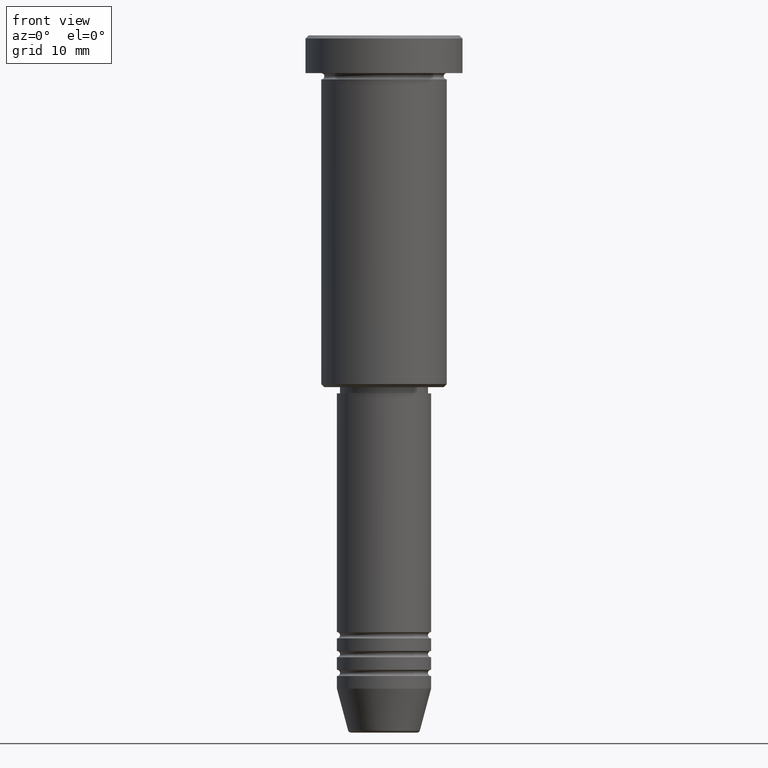
[diagram: clean part render]
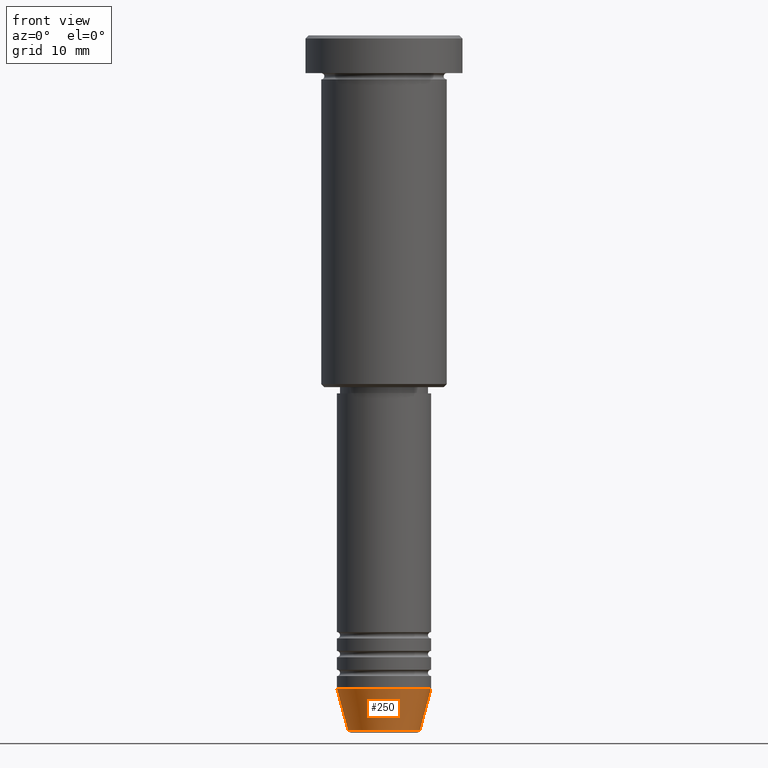
[diagram: same view with one face highlighted and labeled with its STEP entity id]
A machine part, front view. The second image highlights one B-rep face of the part: STEP entity #250.
In plain terms, the highlighted conical surface has half-angle 15 deg.
Its self-contained STEP definition (entity closure, byte-faithful):
#6 = DIRECTION ( 'NONE',  ( 1.000000000000000000, 0.000000000000000000, 0.000000000000000000 ) ) ;
#20 = DIRECTION ( 'NONE',  ( -0.2588190451025213501, 3.169619151431772337E-17, 0.9659258262890680902 ) ) ;
#67 = AXIS2_PLACEMENT_3D ( 'NONE', #142, #1026, #1138 ) ;
#95 = CIRCLE ( 'NONE', #67, 7.500000000000000000 ) ;
#138 = EDGE_CURVE ( 'NONE', #368, #181, #266, .T. ) ;
#142 = CARTESIAN_POINT ( 'NONE',  ( 0.000000000000000000, 0.000000000000000000, -104.0000000000000142 ) ) ;
#174 = CARTESIAN_POINT ( 'NONE',  ( 7.500000000000000000, 0.000000000000000000, -104.0000000000000142 ) ) ;
#181 = VERTEX_POINT ( 'NONE', #445 ) ;
#205 = VECTOR ( 'NONE', #536, 1000.000000000000000 ) ;
#250 = ADVANCED_FACE ( 'NONE', ( #1179 ), #768, .T. ) ;
#263 = DIRECTION ( 'NONE',  ( -0.000000000000000000, -0.000000000000000000, 1.000000000000000000 ) ) ;
#266 = LINE ( 'NONE', #174, #205 ) ;
#274 = DIRECTION ( 'NONE',  ( -0.000000000000000000, -0.000000000000000000, 1.000000000000000000 ) ) ;
#301 = CARTESIAN_POINT ( 'NONE',  ( -7.500000000000000000, 9.184850993605147944E-16, -104.0000000000000142 ) ) ;
#335 = EDGE_CURVE ( 'NONE', #679, #368, #1174, .T. ) ;
#368 = VERTEX_POINT ( 'NONE', #1092 ) ;
#386 = EDGE_CURVE ( 'NONE', #538, #181, #95, .T. ) ;
#445 = CARTESIAN_POINT ( 'NONE',  ( 7.500000000000000000, 0.000000000000000000, -104.0000000000000142 ) ) ;
#536 = DIRECTION ( 'NONE',  ( 0.2588190451025213501, 0.000000000000000000, 0.9659258262890680902 ) ) ;
#538 = VERTEX_POINT ( 'NONE', #301 ) ;
#556 = CARTESIAN_POINT ( 'NONE',  ( -5.723655072137193933, 8.097153428560737887E-16, -110.6294095225512706 ) ) ;
#573 = LINE ( 'NONE', #844, #854 ) ;
#610 = EDGE_CURVE ( 'NONE', #679, #538, #573, .T. ) ;
#624 = ORIENTED_EDGE ( 'NONE', *, *, #386, .F. ) ;
#650 = CARTESIAN_POINT ( 'NONE',  ( 0.000000000000000000, 0.000000000000000000, -110.6294095225512706 ) ) ;
#659 = AXIS2_PLACEMENT_3D ( 'NONE', #650, #274, #6 ) ;
#679 = VERTEX_POINT ( 'NONE', #556 ) ;
#727 = DIRECTION ( 'NONE',  ( 1.000000000000000000, 0.000000000000000000, 0.000000000000000000 ) ) ;
#768 = CONICAL_SURFACE ( 'NONE', #980, 7.500000000000000000, 0.2617993877991500740 ) ;
#844 = CARTESIAN_POINT ( 'NONE',  ( -7.500000000000000000, 9.184850993605147944E-16, -104.0000000000000142 ) ) ;
#854 = VECTOR ( 'NONE', #20, 1000.000000000000000 ) ;
#980 = AXIS2_PLACEMENT_3D ( 'NONE', #1082, #263, #727 ) ;
#1026 = DIRECTION ( 'NONE',  ( -0.000000000000000000, -0.000000000000000000, 1.000000000000000000 ) ) ;
#1070 = ORIENTED_EDGE ( 'NONE', *, *, #610, .F. ) ;
#1082 = CARTESIAN_POINT ( 'NONE',  ( 0.000000000000000000, 0.000000000000000000, -104.0000000000000142 ) ) ;
#1090 = EDGE_LOOP ( 'NONE', ( #1070, #1130, #1181, #624 ) ) ;
#1092 = CARTESIAN_POINT ( 'NONE',  ( 5.723655072137193933, 0.000000000000000000, -110.6294095225512706 ) ) ;
#1130 = ORIENTED_EDGE ( 'NONE', *, *, #335, .T. ) ;
#1138 = DIRECTION ( 'NONE',  ( 1.000000000000000000, 0.000000000000000000, 0.000000000000000000 ) ) ;
#1174 = CIRCLE ( 'NONE', #659, 5.723655072137193933 ) ;
#1179 = FACE_OUTER_BOUND ( 'NONE', #1090, .T. ) ;
#1181 = ORIENTED_EDGE ( 'NONE', *, *, #138, .T. ) ;